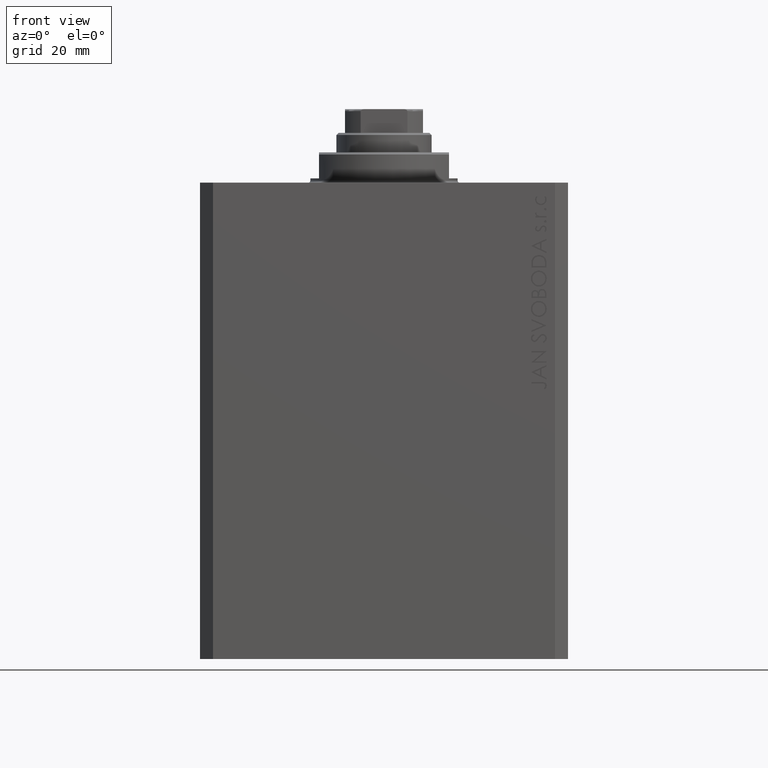
[diagram: clean part render]
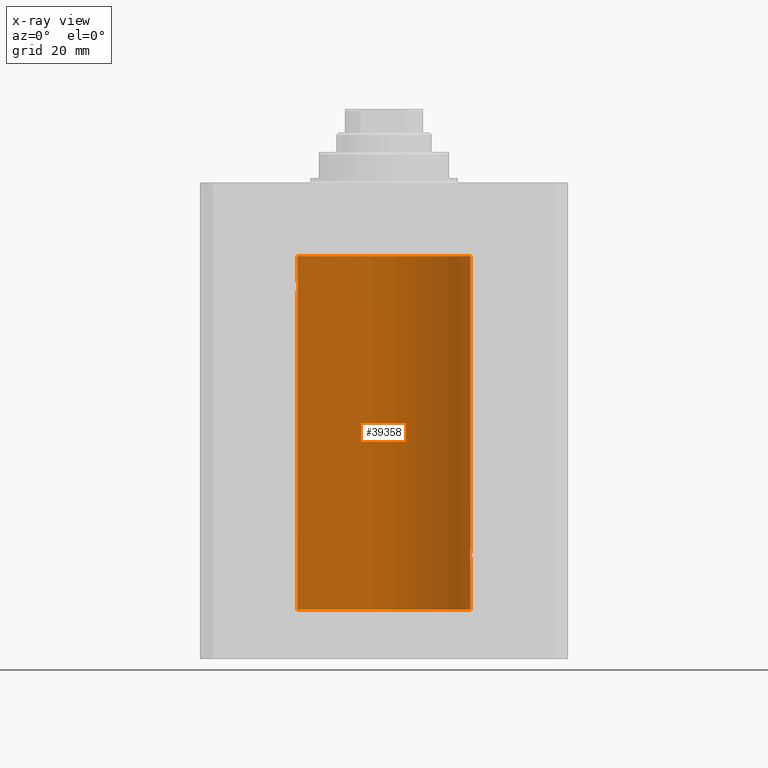
[diagram: x-ray — body ghosted, one internal face saturated and labeled with its STEP entity id]
A machine part, front view, then the same camera in x-ray: the body is ghosted and one INTERNAL B-rep face — a face not visible from any outside direction — is saturated and labeled: STEP entity #39358.
In plain terms, the highlighted cylindrical surface (partial cylindrical patch) has radius 20 mm, axis along (0, 0, 1).
Its self-contained STEP definition (entity closure, byte-faithful):
#163 = CARTESIAN_POINT ( 'NONE',  ( 0.000000000000000000, 0.000000000000000000, -17.00000000000000000 ) ) ;
#314 = CARTESIAN_POINT ( 'NONE',  ( -19.99999999999999645, 0.1322335637814733289, -21.99999999999999645 ) ) ;
#548 = CARTESIAN_POINT ( 'NONE',  ( -19.92471474456649716, 1.735228749583835439, -25.00297226784954674 ) ) ;
#1177 = CARTESIAN_POINT ( 'NONE',  ( 19.99868904672146641, 0.2623009746877876802, -87.98700898509810031 ) ) ;
#1630 = CARTESIAN_POINT ( 'NONE',  ( 19.99369727434158506, 0.5181068333511539281, -87.93612288282997724 ) ) ;
#2778 = CARTESIAN_POINT ( 'NONE',  ( 19.98998987637478209, 0.6441982143731844745, -84.10205654639884187 ) ) ;
#2886 = CARTESIAN_POINT ( 'NONE',  ( -20.00000000000000000, 2.449293582768784389E-15, -25.99999999999999645 ) ) ;
#3660 = CARTESIAN_POINT ( 'NONE',  ( -19.89974399317116394, 2.000047251570890250, -24.12981181290706445 ) ) ;
#4129 = CARTESIAN_POINT ( 'NONE',  ( -19.99365919015135518, 0.5196544277756711683, -25.93573148867292133 ) ) ;
#4147 = VECTOR ( 'NONE', #34175, 1000.000000000000000 ) ;
#4426 = LINE ( 'NONE', #15169, #19573 ) ;
#6125 = CARTESIAN_POINT ( 'NONE',  ( 19.90980722176544049, 1.897923463361389285, -85.35574535366806970 ) ) ;
#6594 = CARTESIAN_POINT ( 'NONE',  ( 20.00000000000000000, -1.553109350199128042E-23, -83.99999999999998579 ) ) ;
#7523 = ORIENTED_EDGE ( 'NONE', *, *, #21862, .F. ) ;
#7721 = CARTESIAN_POINT ( 'NONE',  ( -19.92373272380676497, 1.747830109444745927, -22.99354240926169624 ) ) ;
#7851 = EDGE_CURVE ( 'NONE', #33924, #15131, #36115, .T. ) ;
#7958 = CARTESIAN_POINT ( 'NONE',  ( -19.91909332229799290, 1.797847595792767317, -24.88596189455837759 ) ) ;
#8731 = VERTEX_POINT ( 'NONE', #26632 ) ;
#8930 = B_SPLINE_CURVE_WITH_KNOTS ( 'NONE', 3,
 ( #16872, #9701, #31443, #24279, #6125, #31927, #31687, #20940, #13532, #42652, #9939, #24522, #35507, #2778, #17351, #46462, #13766, #6594 ),
 .UNSPECIFIED., .F., .F.,
 ( 4, 2, 2, 2, 2, 2, 2, 2, 4 ),
 ( 0.003129134698348759892, 0.003520095305221480463, 0.003911055912094201469, 0.004302016518966922040, 0.004692977125839642612, 0.005083937732712363183, 0.005474898339585083755, 0.005865858946457804327, 0.006256819553330524898 ),
 .UNSPECIFIED. ) ;
#9181 = AXIS2_PLACEMENT_3D ( 'NONE', #26479, #10941, #26010 ) ;
#9505 = CARTESIAN_POINT ( 'NONE',  ( 19.89974874213236333, 2.000000000000336620, -86.00000000000000000 ) ) ;
#9701 = CARTESIAN_POINT ( 'NONE',  ( 19.89974874213236689, 2.000000000000336620, -85.86948983741756081 ) ) ;
#9939 = CARTESIAN_POINT ( 'NONE',  ( 19.96305842179988588, 1.219858681717333138, -84.40974712539562574 ) ) ;
#10386 = CARTESIAN_POINT ( 'NONE',  ( -20.00000000000000000, 2.449293598294706513E-15, -98.59999999999999432 ) ) ;
#10575 = CARTESIAN_POINT ( 'NONE',  ( -19.94330239452387232, 1.507796451871729504, -25.32060165083834136 ) ) ;
#10660 = CARTESIAN_POINT ( 'NONE',  ( -20.00000000000000000, 2.449293598294706513E-15, -98.59999999999999432 ) ) ;
#10814 = CARTESIAN_POINT ( 'NONE',  ( -19.89975827978156175, 1.999905101582726719, -23.73819846102561115 ) ) ;
#10941 = DIRECTION ( 'NONE',  ( 0.000000000000000000, 0.000000000000000000, 1.000000000000000000 ) ) ;
#12552 = ORIENTED_EDGE ( 'NONE', *, *, #31484, .F. ) ;
#12618 = CARTESIAN_POINT ( 'NONE',  ( 19.98995738555794688, 0.6452086089795042723, -87.89760345360159022 ) ) ;
#13532 = CARTESIAN_POINT ( 'NONE',  ( 19.94332236886613074, 1.507531922383789524, -84.67909949904071709 ) ) ;
#13766 = CARTESIAN_POINT ( 'NONE',  ( 20.00000000000000000, 0.1305404422160218736, -83.99999999999997158 ) ) ;
#13986 = LINE ( 'NONE', #10386, #46384 ) ;
#14138 = CARTESIAN_POINT ( 'NONE',  ( 20.00000000000000000, 0.000000000000000000, -98.59999999999999432 ) ) ;
#14169 = CARTESIAN_POINT ( 'NONE',  ( -19.96308513509966787, 1.219458756546270672, -22.40940266542446935 ) ) ;
#14405 = CARTESIAN_POINT ( 'NONE',  ( -19.99370013622814568, 0.5179893069484621249, -22.06384771616670903 ) ) ;
#15103 = CARTESIAN_POINT ( 'NONE',  ( -19.90978941500366872, 1.898109641280506521, -24.64371130639850804 ) ) ;
#15131 = VERTEX_POINT ( 'NONE', #29213 ) ;
#15169 = CARTESIAN_POINT ( 'NONE',  ( 20.00000000000000000, 0.000000000000000000, -98.59999999999999432 ) ) ;
#15277 = CARTESIAN_POINT ( 'NONE',  ( 0.000000000000000000, 0.000000000000000000, -98.59999999999999432 ) ) ;
#15509 = CARTESIAN_POINT ( 'NONE',  ( 19.96307037068151757, 1.219701915132744841, -87.59041349350361827 ) ) ;
#16063 = CARTESIAN_POINT ( 'NONE',  ( 20.00000000000000000, -1.553109350199128042E-23, -83.99999999999998579 ) ) ;
#16858 = EDGE_CURVE ( 'NONE', #23895, #42301, #4426, .T. ) ;
#16872 = CARTESIAN_POINT ( 'NONE',  ( 19.89974874213236333, 2.000000000000336620, -86.00000000000000000 ) ) ;
#17322 = VERTEX_POINT ( 'NONE', #19457 ) ;
#17351 = CARTESIAN_POINT ( 'NONE',  ( 19.99366205580918887, 0.5195372307044503479, -84.06423906555805559 ) ) ;
#17919 = ORIENTED_EDGE ( 'NONE', *, *, #28860, .T. ) ;
#17995 = CARTESIAN_POINT ( 'NONE',  ( -19.95645382900617903, 1.322305185229311064, -22.49384229619286657 ) ) ;
#18200 = DIRECTION ( 'NONE',  ( -0.000000000000000000, -0.000000000000000000, 1.000000000000000000 ) ) ;
#18232 = CARTESIAN_POINT ( 'NONE',  ( -19.98070694681040038, 0.8865903856744316025, -25.79753901127162763 ) ) ;
#18418 = CYLINDRICAL_SURFACE ( 'NONE', #30765, 20.00000000000000000 ) ;
#19377 = CARTESIAN_POINT ( 'NONE',  ( -20.00000000000000000, -1.269718202421245235E-16, -22.00000000000000000 ) ) ;
#19457 = CARTESIAN_POINT ( 'NONE',  ( 19.89974874213236333, 2.000000000000336620, -86.00000000000000000 ) ) ;
#19573 = VECTOR ( 'NONE', #34921, 1000.000000000000000 ) ;
#20086 = ORIENTED_EDGE ( 'NONE', *, *, #16858, .T. ) ;
#20572 = CARTESIAN_POINT ( 'NONE',  ( 20.00000000000000000, 0.000000000000000000, -98.59999999999999432 ) ) ;
#20940 = CARTESIAN_POINT ( 'NONE',  ( 19.93681418096177183, 1.590194273034202688, -84.78006300821552088 ) ) ;
#21862 = EDGE_CURVE ( 'NONE', #24668, #36361, #13986, .T. ) ;
#22049 = CARTESIAN_POINT ( 'NONE',  ( -19.99868965376115071, 0.2622407139811102628, -22.01298505384673732 ) ) ;
#22231 = ORIENTED_EDGE ( 'NONE', *, *, #32374, .T. ) ;
#22290 = CARTESIAN_POINT ( 'NONE',  ( -19.98067755938510714, 0.8872481584516758168, -22.20278656943303375 ) ) ;
#22525 = CARTESIAN_POINT ( 'NONE',  ( -19.90106552791689154, 1.987020435121076734, -24.26241417820002155 ) ) ;
#22856 = ORIENTED_EDGE ( 'NONE', *, *, #7851, .T. ) ;
#22919 = CARTESIAN_POINT ( 'NONE',  ( 19.92371056170336274, 1.748080295468898537, -87.00603865937249282 ) ) ;
#23331 = ORIENTED_EDGE ( 'NONE', *, *, #44878, .F. ) ;
#23895 = VERTEX_POINT ( 'NONE', #16063 ) ;
#24279 = CARTESIAN_POINT ( 'NONE',  ( 19.90611763847108762, 1.935753518394741635, -85.48042243434846910 ) ) ;
#24522 = CARTESIAN_POINT ( 'NONE',  ( 19.97511131722831479, 1.003336743019912936, -84.26498565174385647 ) ) ;
#24668 = VERTEX_POINT ( 'NONE', #10660 ) ;
#24972 = DIRECTION ( 'NONE',  ( -0.000000000000000000, -0.000000000000000000, 1.000000000000000000 ) ) ;
#25743 = B_SPLINE_CURVE_WITH_KNOTS ( 'NONE', 3,
 ( #34374, #41994, #1177, #1630, #12618, #30776, #45337, #15509, #44648, #41049, #22919, #37482, #35327, #9505 ),
 .UNSPECIFIED., .F., .F.,
 ( 4, 2, 2, 2, 2, 2, 4 ),
 ( 1.911692756536875168E-18, 0.0003911418372936038769, 0.0007822836745872059107, 0.001173425511880807782, 0.001564567349174409870, 0.002346851023761584772, 0.003129134698348759892 ),
 .UNSPECIFIED. ) ;
#26010 = DIRECTION ( 'NONE',  ( 1.000000000000000000, 0.000000000000000000, 0.000000000000000000 ) ) ;
#26111 = CARTESIAN_POINT ( 'NONE',  ( -20.00000000000000000, 2.449293582768784389E-15, -25.99999999999999645 ) ) ;
#26479 = CARTESIAN_POINT ( 'NONE',  ( 0.000000000000000000, 0.000000000000000000, -98.59999999999999432 ) ) ;
#26632 = CARTESIAN_POINT ( 'NONE',  ( -20.00000000000000000, 2.449293598294706513E-15, -17.00000000000000000 ) ) ;
#28750 = CARTESIAN_POINT ( 'NONE',  ( -19.95654117037011588, 1.321069663197671273, -25.50738641543989615 ) ) ;
#28860 = EDGE_CURVE ( 'NONE', #17322, #23895, #8930, .T. ) ;
#28986 = CARTESIAN_POINT ( 'NONE',  ( -19.98998539619404013, 0.6443418861413118259, -25.89789687358865322 ) ) ;
#29213 = CARTESIAN_POINT ( 'NONE',  ( 20.00000000000000000, 1.967327733996653312E-15, -88.00000000000000000 ) ) ;
#29226 = CARTESIAN_POINT ( 'NONE',  ( -19.99999999999999645, 0.1305706983324449733, -25.99999999999998934 ) ) ;
#29257 = ORIENTED_EDGE ( 'NONE', *, *, #34818, .T. ) ;
#29455 = CARTESIAN_POINT ( 'NONE',  ( -19.96304379627741454, 1.220099331833899736, -25.59007067689674386 ) ) ;
#29866 = DIRECTION ( 'NONE',  ( 1.000000000000000000, 0.000000000000000000, 0.000000000000000000 ) ) ;
#30765 = AXIS2_PLACEMENT_3D ( 'NONE', #15277, #36796, #29866 ) ;
#30776 = CARTESIAN_POINT ( 'NONE',  ( 19.98066923111604964, 0.8874387315505228857, -87.79712145220240416 ) ) ;
#31182 = EDGE_LOOP ( 'NONE', ( #7523, #12552, #22856, #29257, #17919, #20086, #22231, #23331, #33056 ) ) ;
#31443 = CARTESIAN_POINT ( 'NONE',  ( 19.90107458412648711, 1.986930174329755161, -85.73692013941790435 ) ) ;
#31484 = EDGE_CURVE ( 'NONE', #33924, #24668, #37391, .T. ) ;
#31687 = CARTESIAN_POINT ( 'NONE',  ( 19.92473605353366040, 1.734984354167257159, -84.99660905888589468 ) ) ;
#31927 = CARTESIAN_POINT ( 'NONE',  ( 19.91911433329477177, 1.797615436563606561, -85.11357106075779200 ) ) ;
#31965 = B_SPLINE_CURVE_WITH_KNOTS ( 'NONE', 3,
 ( #32326, #314, #22049, #14405, #46869, #22290, #33037, #14169, #17995, #32800, #7721, #36851, #10814, #3660, #22525, #40417, #15103, #7958, #548, #37085, #10575, #28750, #29455, #43781, #18232, #28986, #4129, #44017, #29226, #26111 ),
 .UNSPECIFIED., .F., .F.,
 ( 4, 2, 2, 2, 2, 2, 2, 2, 2, 2, 2, 2, 2, 2, 4 ),
 ( 1.233811249882840126E-19, 0.0003910512220831129202, 0.0007821024441662257319, 0.001173153666249338381, 0.001564204888332450813, 0.002346307332498675461, 0.003128409776664900326, 0.003519460998748018179, 0.003910512220831135165, 0.004301563442914253452, 0.004692614664997370871, 0.005083665887080488291, 0.005474717109163606578, 0.005865768331246723997, 0.006256819553329842284 ),
 .UNSPECIFIED. ) ;
#32326 = CARTESIAN_POINT ( 'NONE',  ( -20.00000000000000000, -1.269718202421245235E-16, -22.00000000000000000 ) ) ;
#32374 = EDGE_CURVE ( 'NONE', #42301, #8731, #32863, .T. ) ;
#32800 = CARTESIAN_POINT ( 'NONE',  ( -19.93684595445884611, 1.598854313793185655, -22.77049887769366521 ) ) ;
#32863 = CIRCLE ( 'NONE', #33655, 20.00000000000000000 ) ;
#33037 = CARTESIAN_POINT ( 'NONE',  ( -19.97517568592526160, 1.002099838626314909, -22.26423634872104884 ) ) ;
#33056 = ORIENTED_EDGE ( 'NONE', *, *, #37052, .T. ) ;
#33329 = CARTESIAN_POINT ( 'NONE',  ( 20.00000000000000000, 0.000000000000000000, -17.00000000000000000 ) ) ;
#33448 = FACE_OUTER_BOUND ( 'NONE', #31182, .T. ) ;
#33655 = AXIS2_PLACEMENT_3D ( 'NONE', #163, #40269, #44104 ) ;
#33924 = VERTEX_POINT ( 'NONE', #20572 ) ;
#34175 = DIRECTION ( 'NONE',  ( -0.000000000000000000, -0.000000000000000000, 1.000000000000000000 ) ) ;
#34374 = CARTESIAN_POINT ( 'NONE',  ( 20.00000000000000000, 1.967327733996653312E-15, -88.00000000000000000 ) ) ;
#34818 = EDGE_CURVE ( 'NONE', #15131, #17322, #25743, .T. ) ;
#34921 = DIRECTION ( 'NONE',  ( -0.000000000000000000, -0.000000000000000000, 1.000000000000000000 ) ) ;
#35327 = CARTESIAN_POINT ( 'NONE',  ( 19.89974874213236689, 2.000000000000336620, -86.26114132155828429 ) ) ;
#35507 = CARTESIAN_POINT ( 'NONE',  ( 19.98071536551674754, 0.8863972468204365240, -84.20236805399481739 ) ) ;
#36115 = LINE ( 'NONE', #14138, #40915 ) ;
#36361 = VERTEX_POINT ( 'NONE', #2886 ) ;
#36796 = DIRECTION ( 'NONE',  ( -0.000000000000000000, -0.000000000000000000, 1.000000000000000000 ) ) ;
#36851 = CARTESIAN_POINT ( 'NONE',  ( -19.90522393307484705, 1.947330458682957177, -23.47486091545001941 ) ) ;
#37052 = EDGE_CURVE ( 'NONE', #46983, #36361, #31965, .T. ) ;
#37085 = CARTESIAN_POINT ( 'NONE',  ( -19.93679350243183990, 1.590453176650918676, -25.21960275349743696 ) ) ;
#37391 = CIRCLE ( 'NONE', #9181, 20.00000000000000000 ) ;
#37482 = CARTESIAN_POINT ( 'NONE',  ( 19.90520750556430229, 1.947496194184494378, -86.52455416993456083 ) ) ;
#39358 = ADVANCED_FACE ( 'NONE', ( #33448 ), #18418, .F. ) ;
#40269 = DIRECTION ( 'NONE',  ( 0.000000000000000000, 0.000000000000000000, 1.000000000000000000 ) ) ;
#40377 = LINE ( 'NONE', #44680, #4147 ) ;
#40417 = CARTESIAN_POINT ( 'NONE',  ( -19.90610216711450420, 1.935912154109700190, -24.51899474186111050 ) ) ;
#40915 = VECTOR ( 'NONE', #18200, 1000.000000000000000 ) ;
#41049 = CARTESIAN_POINT ( 'NONE',  ( 19.93682487288204541, 1.599118048130817149, -87.22917035181220058 ) ) ;
#41994 = CARTESIAN_POINT ( 'NONE',  ( 20.00000000000000000, 0.1322642052205942886, -88.00000000000004263 ) ) ;
#42301 = VERTEX_POINT ( 'NONE', #33329 ) ;
#42652 = CARTESIAN_POINT ( 'NONE',  ( 19.95655800881796083, 1.320814917468111194, -84.49239309359695937 ) ) ;
#43781 = CARTESIAN_POINT ( 'NONE',  ( -19.97510079925438475, 1.003547732426807171, -25.73489454601984150 ) ) ;
#44017 = CARTESIAN_POINT ( 'NONE',  ( -19.99867931558985745, 0.2631998640366461362, -25.98691292011447374 ) ) ;
#44104 = DIRECTION ( 'NONE',  ( 1.000000000000000000, 0.000000000000000000, 0.000000000000000000 ) ) ;
#44648 = CARTESIAN_POINT ( 'NONE',  ( 19.95643710845398999, 1.322557776536547047, -87.50593841146685747 ) ) ;
#44680 = CARTESIAN_POINT ( 'NONE',  ( -20.00000000000000000, 2.449293598294706513E-15, -98.59999999999999432 ) ) ;
#44878 = EDGE_CURVE ( 'NONE', #46983, #8731, #40377, .T. ) ;
#45337 = CARTESIAN_POINT ( 'NONE',  ( 19.97516523393783316, 1.002309963754524524, -87.73564471556109368 ) ) ;
#46384 = VECTOR ( 'NONE', #24972, 1000.000000000000000 ) ;
#46462 = CARTESIAN_POINT ( 'NONE',  ( 19.99867993937906618, 0.2631387813862826053, -84.01308095003093968 ) ) ;
#46869 = CARTESIAN_POINT ( 'NONE',  ( -19.98996196681220638, 0.6450624715427617506, -22.10234886833925572 ) ) ;
#46983 = VERTEX_POINT ( 'NONE', #19377 ) ;